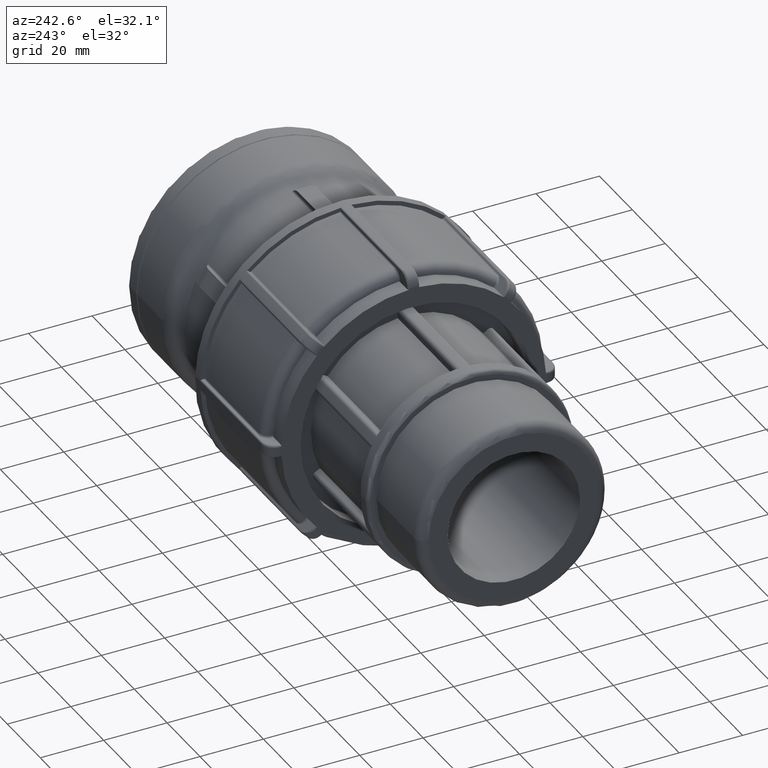
[diagram: clean part render]
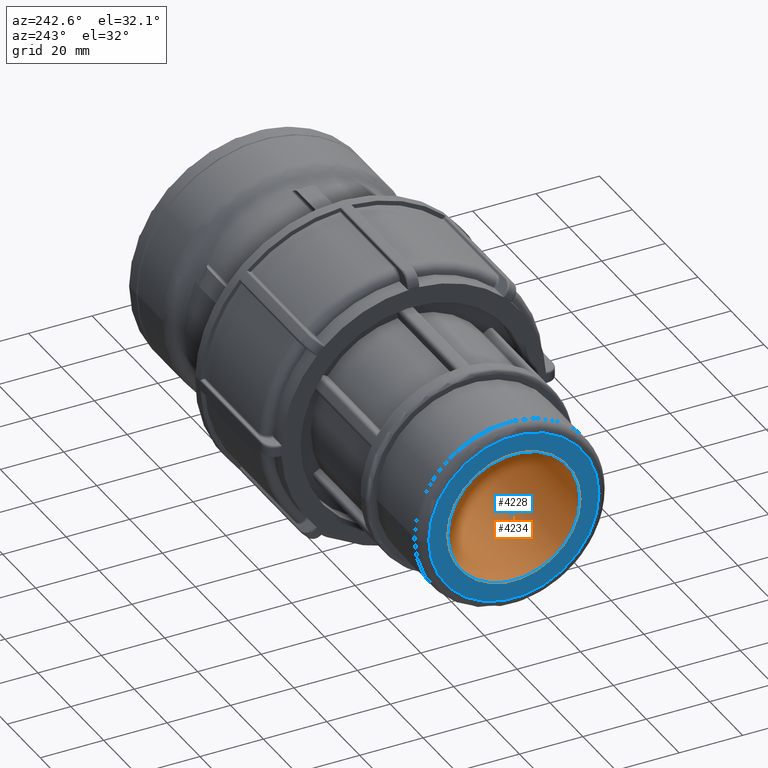
[diagram: same view with the hole feature highlighted: cylindrical wall and planar end face, labeled with their STEP entity ids]
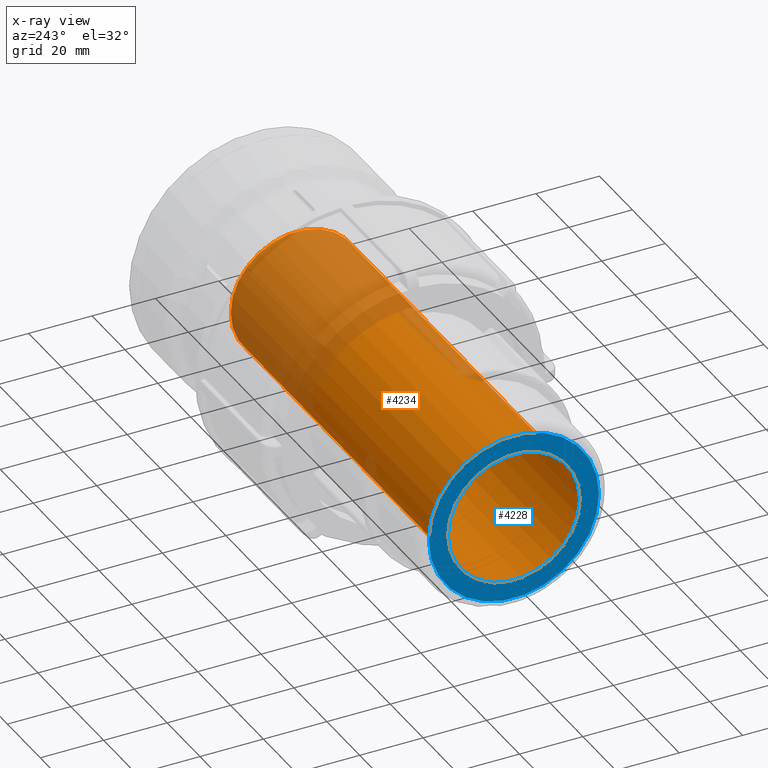
[diagram: x-ray of the same camera — body ghosted, the hole faces saturated]
A machine part, auxiliary view. The highlighted faces form one hole feature of diameter 41.7298 mm: the cylindrical wall (entity #4234, orange) and its adjacent planar end face (entity #4228, blue) — they share a circular edge in the B-rep.
The next image is the same camera in x-ray (body ghosted, the hole faces saturated) — the bore reads through the body.
Wall:
#77=FACE_BOUND('',#1262,.T.);
#749=CYLINDRICAL_SURFACE('',#4678,20.8649);
#991=FACE_OUTER_BOUND('',#1261,.T.);
#1261=EDGE_LOOP('',(#3954));
#1262=EDGE_LOOP('',(#3955));
#1647=CIRCLE('',#4669,20.8649);
#1650=CIRCLE('',#4677,20.8649);
#2066=VERTEX_POINT('',#8921);
#2069=VERTEX_POINT('',#8932);
#2697=EDGE_CURVE('',#2066,#2066,#1647,.T.);
#2700=EDGE_CURVE('',#2069,#2069,#1650,.T.);
#3954=ORIENTED_EDGE('',*,*,#2700,.T.);
#3955=ORIENTED_EDGE('',*,*,#2697,.F.);
#4234=ADVANCED_FACE('',(#991,#77),#749,.F.);
#4669=AXIS2_PLACEMENT_3D('',#8922,#5790,#5791);
#4677=AXIS2_PLACEMENT_3D('',#8933,#5806,#5807);
#4678=AXIS2_PLACEMENT_3D('',#8934,#5808,#5809);
#5790=DIRECTION('center_axis',(1.,0.,0.));
#5791=DIRECTION('ref_axis',(0.,0.,-1.));
#5806=DIRECTION('center_axis',(1.,0.,0.));
#5807=DIRECTION('ref_axis',(0.,0.,-1.));
#5808=DIRECTION('center_axis',(1.,0.,0.));
#5809=DIRECTION('ref_axis',(0.,1.,0.));
#8921=CARTESIAN_POINT('',(-158.,20.8649,0.));
#8922=CARTESIAN_POINT('Origin',(-158.,0.,0.));
#8932=CARTESIAN_POINT('',(-26.,20.8649,0.));
#8933=CARTESIAN_POINT('Origin',(-26.,0.,0.));
#8934=CARTESIAN_POINT('Origin',(-92.,0.,0.));
End face:
#71=FACE_BOUND('',#1250,.T.);
#145=PLANE('',#4668);
#985=FACE_OUTER_BOUND('',#1249,.T.);
#1249=EDGE_LOOP('',(#3942));
#1250=EDGE_LOOP('',(#3943));
#1645=CIRCLE('',#4666,26.8263);
#1647=CIRCLE('',#4669,20.8649);
#2064=VERTEX_POINT('',#8916);
#2066=VERTEX_POINT('',#8921);
#2695=EDGE_CURVE('',#2064,#2064,#1645,.T.);
#2697=EDGE_CURVE('',#2066,#2066,#1647,.T.);
#3942=ORIENTED_EDGE('',*,*,#2695,.F.);
#3943=ORIENTED_EDGE('',*,*,#2697,.T.);
#4228=ADVANCED_FACE('',(#985,#71),#145,.T.);
#4666=AXIS2_PLACEMENT_3D('',#8917,#5784,#5785);
#4668=AXIS2_PLACEMENT_3D('',#8920,#5788,#5789);
#4669=AXIS2_PLACEMENT_3D('',#8922,#5790,#5791);
#5784=DIRECTION('center_axis',(1.,0.,0.));
#5785=DIRECTION('ref_axis',(0.,-1.,1.83697019872103E-16));
#5788=DIRECTION('center_axis',(-1.,0.,0.));
#5789=DIRECTION('ref_axis',(0.,0.,1.));
#5790=DIRECTION('center_axis',(1.,0.,0.));
#5791=DIRECTION('ref_axis',(0.,0.,-1.));
#8916=CARTESIAN_POINT('',(-158.,26.8263,-1.64263712139833E-15));
#8917=CARTESIAN_POINT('Origin',(-158.,0.,0.));
#8920=CARTESIAN_POINT('Origin',(-158.,29.807,0.));
#8921=CARTESIAN_POINT('',(-158.,20.8649,0.));
#8922=CARTESIAN_POINT('Origin',(-158.,0.,0.));